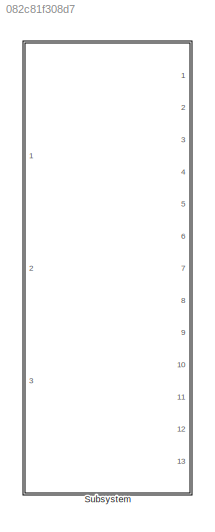
MODEL slx_082c81f308d7
KIND model
CONFIG AbsTol = auto
CONFIG EnableMultiTasking = on
CONFIG FixedStep = 0.01
CONFIG MaxStep = auto
CONFIG MinStep = auto
CONFIG RelTol = 1e-3
CONFIG SampleTimeConstraint = Unconstrained
CONFIG Solver = FixedStepDiscrete
CONFIG SolverName = FixedStepDiscrete
CONFIG StartTime = 0.0
CONFIG StopTime = inf
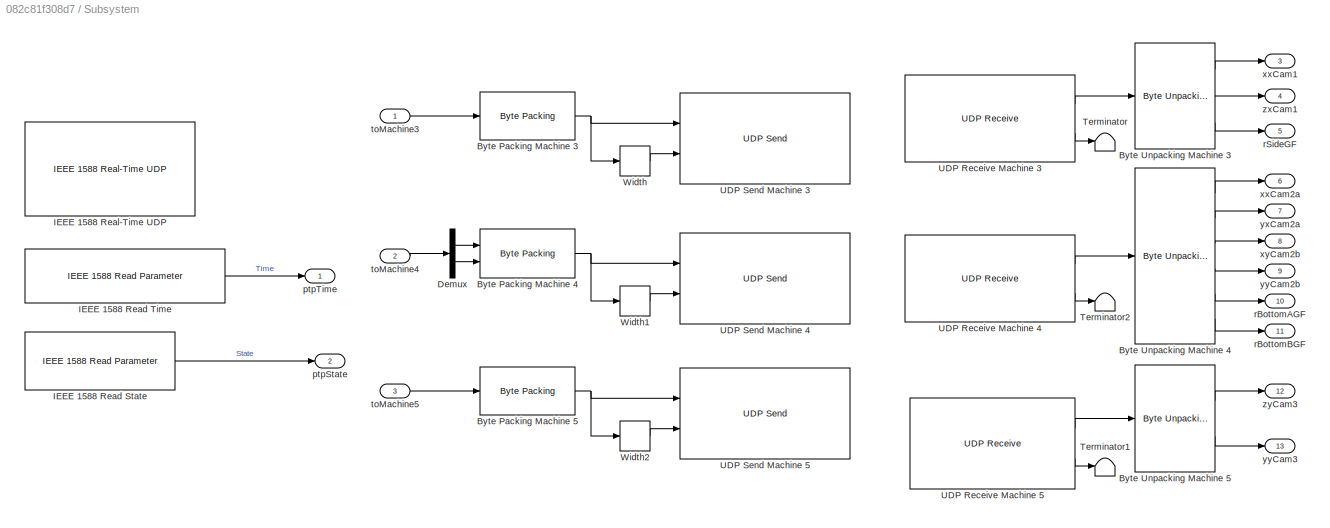
BLOCK [SubSystem] Subsystem
  Ports = [3, 13]
  RequestExecContextInheritance = off
  TreatAsAtomicUnit = on
BLOCK [Reference] Subsystem/Byte Packing Machine 3  REF=xpcutilitieslib/Byte Packing 
  Ports = [1, 1]
  SourceBlock = xpcutilitieslib/Byte Packing
  SourceProductBaseCode = XP
  SourceProductName = Simulink Real-Time
  SourceType = xpcbytepacking
BLOCK [Reference] Subsystem/Byte Packing Machine 4  REF=xpcutilitieslib/Byte Packing 
  Ports = [2, 1]
  SourceBlock = xpcutilitieslib/Byte Packing
  SourceProductBaseCode = XP
  SourceProductName = Simulink Real-Time
  SourceType = xpcbytepacking
BLOCK [Reference] Subsystem/Byte Packing Machine 5  REF=xpcutilitieslib/Byte Packing 
  Ports = [1, 1]
  SourceBlock = xpcutilitieslib/Byte Packing
  SourceProductBaseCode = XP
  SourceProductName = Simulink Real-Time
  SourceType = xpcbytepacking
BLOCK [Reference] Subsystem/Byte Unpacking Machine 3   REF=xpcutilitieslib/Byte Unpacking 
  Ports = [1, 3]
  SourceBlock = xpcutilitieslib/Byte Unpacking
  SourceProductBaseCode = XP
  SourceProductName = Simulink Real-Time
  SourceType = xpcbytepacking
BLOCK [Reference] Subsystem/Byte Unpacking Machine 4  REF=xpcutilitieslib/Byte Unpacking 
  Ports = [1, 6]
  SourceBlock = xpcutilitieslib/Byte Unpacking
  SourceProductBaseCode = XP
  SourceProductName = Simulink Real-Time
  SourceType = xpcbytepacking
BLOCK [Reference] Subsystem/Byte Unpacking Machine 5  REF=xpcutilitieslib/Byte Unpacking 
  Ports = [1, 2]
  SourceBlock = xpcutilitieslib/Byte Unpacking
  SourceProductBaseCode = XP
  SourceProductName = Simulink Real-Time
  SourceType = xpcbytepacking
BLOCK [Demux] Subsystem/Demux
  DisplayOption = bar
  Outputs = 2
  Ports = [1, 2]
BLOCK [Reference] Subsystem/IEEE 1588 Read State  REF=ptplib/IEEE 1588
Read Parameter
  Ports = [0, 1]
  Priority = 1
  SourceBlock = ptplib/IEEE 1588\nRead Parameter
  SourceProductBaseCode = XP
  SourceProductName = Simulink Real-Time
  SourceType = IEEE_1588_read_param
BLOCK [Reference] Subsystem/IEEE 1588 Read Time  REF=ptplib/IEEE 1588
Read Parameter
  Ports = [0, 1]
  Priority = 1
  SourceBlock = ptplib/IEEE 1588\nRead Parameter
  SourceProductBaseCode = XP
  SourceProductName = Simulink Real-Time
  SourceType = IEEE_1588_read_param
BLOCK [Reference] Subsystem/IEEE 1588 Real-Time UDP  REF=ptplib/IEEE 1588 Real-Time UDP
  Ports = []
  Priority = 0
  SourceBlock = ptplib/IEEE 1588 Real-Time UDP
  SourceProductBaseCode = XP
  SourceProductName = Simulink Real-Time
  SourceType = IEEE1588_UDP
BLOCK [Terminator] Subsystem/Terminator
BLOCK [Terminator] Subsystem/Terminator1
BLOCK [Terminator] Subsystem/Terminator2
BLOCK [Reference] Subsystem/UDP Receive Machine 3  REF=xpcrtudplib/UDP Receive
  Ports = [0, 2]
  SourceBlock = xpcrtudplib/UDP Receive
  SourceProductBaseCode = XP
  SourceProductName = Simulink Real-Time
  SourceType = slrtudpreceive
BLOCK [Reference] Subsystem/UDP Receive Machine 4  REF=xpcrtudplib/UDP Receive
  Ports = [0, 2]
  SourceBlock = xpcrtudplib/UDP Receive
  SourceProductBaseCode = XP
  SourceProductName = Simulink Real-Time
  SourceType = slrtudpreceive
BLOCK [Reference] Subsystem/UDP Receive Machine 5  REF=xpcrtudplib/UDP Receive
  Ports = [0, 2]
  SourceBlock = xpcrtudplib/UDP Receive
  SourceProductBaseCode = XP
  SourceProductName = Simulink Real-Time
  SourceType = slrtudpreceive
BLOCK [Reference] Subsystem/UDP Send Machine 3  REF=xpcrtudplib/UDP Send
  Ports = [2]
  SourceBlock = xpcrtudplib/UDP Send
  SourceProductBaseCode = XP
  SourceProductName = Simulink Real-Time
  SourceType = slrtudpsend
BLOCK [Reference] Subsystem/UDP Send Machine 4  REF=xpcrtudplib/UDP Send
  Ports = [2]
  SourceBlock = xpcrtudplib/UDP Send
  SourceProductBaseCode = XP
  SourceProductName = Simulink Real-Time
  SourceType = slrtudpsend
BLOCK [Reference] Subsystem/UDP Send Machine 5  REF=xpcrtudplib/UDP Send
  Ports = [2]
  SourceBlock = xpcrtudplib/UDP Send
  SourceProductBaseCode = XP
  SourceProductName = Simulink Real-Time
  SourceType = slrtudpsend
BLOCK [Width] Subsystem/Width
BLOCK [Width] Subsystem/Width1
BLOCK [Width] Subsystem/Width2
BLOCK [Outport] Subsystem/ptpState
  IconDisplay = Port number
  Port = 2
BLOCK [Outport] Subsystem/ptpTime
  IconDisplay = Port number
BLOCK [Outport] Subsystem/rBottomAGF
  IconDisplay = Port number
  Port = 10
BLOCK [Outport] Subsystem/rBottomBGF
  IconDisplay = Port number
  Port = 11
BLOCK [Outport] Subsystem/rSideGF
  IconDisplay = Port number
  Port = 5
BLOCK [Inport] Subsystem/toMachine3
  IconDisplay = Port number
BLOCK [Inport] Subsystem/toMachine4
  IconDisplay = Port number
  Port = 2
BLOCK [Inport] Subsystem/toMachine5
  IconDisplay = Port number
  Port = 3
BLOCK [Outport] Subsystem/xxCam1
  IconDisplay = Port number
  Port = 3
BLOCK [Outport] Subsystem/xxCam2a
  IconDisplay = Port number
  Port = 6
BLOCK [Outport] Subsystem/xyCam2b
  IconDisplay = Port number
  Port = 8
BLOCK [Outport] Subsystem/yxCam2a
  IconDisplay = Port number
  Port = 7
BLOCK [Outport] Subsystem/yyCam2b
  IconDisplay = Port number
  Port = 9
BLOCK [Outport] Subsystem/yyCam3
  IconDisplay = Port number
  Port = 13
BLOCK [Outport] Subsystem/zxCam1
  IconDisplay = Port number
  Port = 4
BLOCK [Outport] Subsystem/zyCam3
  IconDisplay = Port number
  Port = 12
NET Subsystem/Byte Packing Machine 3:1 -> Subsystem/UDP Send Machine 3:1, Subsystem/Width:1
NET Subsystem/Byte Packing Machine 4:1 -> Subsystem/UDP Send Machine 4:1, Subsystem/Width1:1
NET Subsystem/Byte Packing Machine 5:1 -> Subsystem/UDP Send Machine 5:1, Subsystem/Width2:1
LINE Subsystem/Byte Unpacking Machine 3 :1 -> Subsystem/xxCam1:1
LINE Subsystem/Byte Unpacking Machine 3 :2 -> Subsystem/zxCam1:1
LINE Subsystem/Byte Unpacking Machine 3 :3 -> Subsystem/rSideGF:1
LINE Subsystem/Byte Unpacking Machine 4:1 -> Subsystem/xxCam2a:1
LINE Subsystem/Byte Unpacking Machine 4:2 -> Subsystem/yxCam2a:1
LINE Subsystem/Byte Unpacking Machine 4:3 -> Subsystem/xyCam2b:1
LINE Subsystem/Byte Unpacking Machine 4:4 -> Subsystem/yyCam2b:1
LINE Subsystem/Byte Unpacking Machine 4:5 -> Subsystem/rBottomAGF:1
LINE Subsystem/Byte Unpacking Machine 4:6 -> Subsystem/rBottomBGF:1
LINE Subsystem/Byte Unpacking Machine 5:1 -> Subsystem/zyCam3:1
LINE Subsystem/Byte Unpacking Machine 5:2 -> Subsystem/yyCam3:1
LINE Subsystem/Demux:1 -> Subsystem/Byte Packing Machine 4:1
LINE Subsystem/Demux:2 -> Subsystem/Byte Packing Machine 4:2
LINE Subsystem/IEEE 1588 Read State:1 -> Subsystem/ptpState:1
LINE Subsystem/IEEE 1588 Read Time:1 -> Subsystem/ptpTime:1
LINE Subsystem/UDP Receive Machine 3:1 -> Subsystem/Byte Unpacking Machine 3 :1
LINE Subsystem/UDP Receive Machine 3:2 -> Subsystem/Terminator:1
LINE Subsystem/UDP Receive Machine 4:1 -> Subsystem/Byte Unpacking Machine 4:1
LINE Subsystem/UDP Receive Machine 4:2 -> Subsystem/Terminator2:1
LINE Subsystem/UDP Receive Machine 5:1 -> Subsystem/Byte Unpacking Machine 5:1
LINE Subsystem/UDP Receive Machine 5:2 -> Subsystem/Terminator1:1
LINE Subsystem/Width1:1 -> Subsystem/UDP Send Machine 4:2
LINE Subsystem/Width2:1 -> Subsystem/UDP Send Machine 5:2
LINE Subsystem/Width:1 -> Subsystem/UDP Send Machine 3:2
LINE Subsystem/toMachine3:1 -> Subsystem/Byte Packing Machine 3:1
LINE Subsystem/toMachine4:1 -> Subsystem/Demux:1
LINE Subsystem/toMachine5:1 -> Subsystem/Byte Packing Machine 5:1
note: NET lines group one-source signal fan-out (src -> all destinations, sorted); 1:1 wires keep LINE
